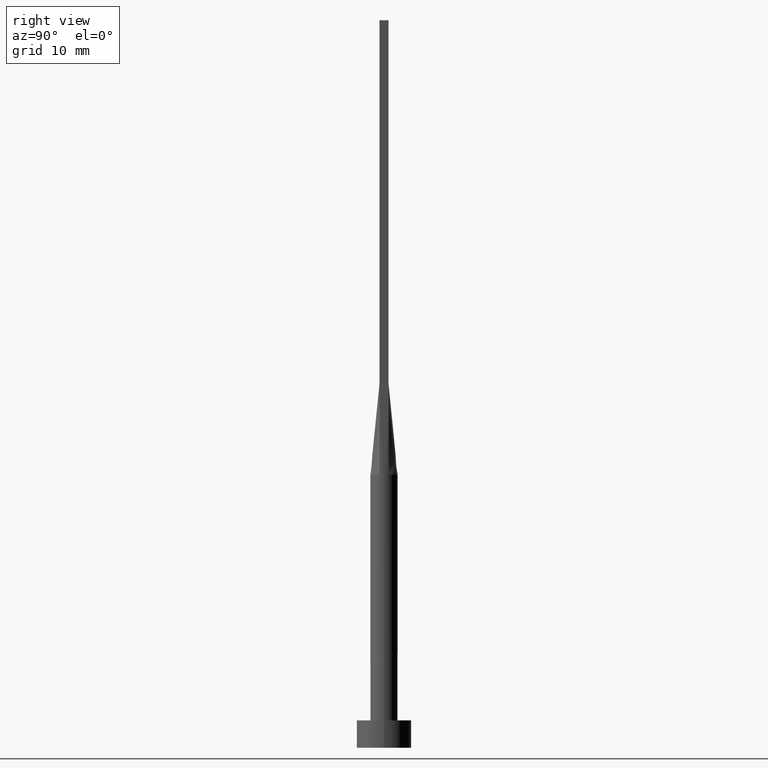
[diagram: clean part render]
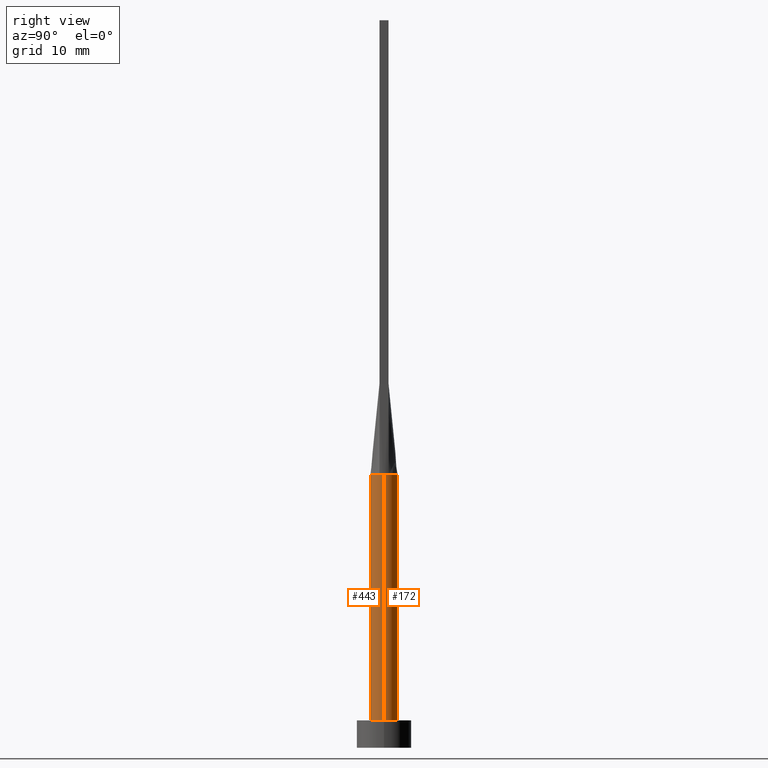
[diagram: same view with one multi-face feature highlighted, each face labeled with its STEP entity id]
A machine part, right view. The highlighted faces form ONE feature: a constant-radius fillet chain: 2 tangent blend faces with common blend radius 1.5 mm. The faces share edges in the B-rep.
Their STEP definitions:
[1] entity #443 (Cylinder):
#5 = EDGE_CURVE ( 'NONE', #149, #128, #182, .T. ) ;
#7 = DIRECTION ( 'NONE',  ( 1.000000000000000000, 0.000000000000000000, 0.000000000000000000 ) ) ;
#11 = AXIS2_PLACEMENT_3D ( 'NONE', #327, #374, #507 ) ;
#14 = EDGE_CURVE ( 'NONE', #143, #565, #286, .T. ) ;
#16 = AXIS2_PLACEMENT_3D ( 'NONE', #95, #451, #551 ) ;
#47 = DIRECTION ( 'NONE',  ( 0.000000000000000000, 0.000000000000000000, 1.000000000000000000 ) ) ;
#69 = CARTESIAN_POINT ( 'NONE',  ( 1.500000000000000222, 1.836970198721030181E-16, 3.000000000000000000 ) ) ;
#82 = EDGE_LOOP ( 'NONE', ( #506, #125, #531, #196, #490, #463 ) ) ;
#95 = CARTESIAN_POINT ( 'NONE',  ( 0.000000000000000000, 0.000000000000000000, 30.00000000000000000 ) ) ;
#100 = AXIS2_PLACEMENT_3D ( 'NONE', #495, #267, #270 ) ;
#125 = ORIENTED_EDGE ( 'NONE', *, *, #480, .F. ) ;
#128 = VERTEX_POINT ( 'NONE', #201 ) ;
#139 = EDGE_CURVE ( 'NONE', #554, #395, #430, .T. ) ;
#143 = VERTEX_POINT ( 'NONE', #564 ) ;
#149 = VERTEX_POINT ( 'NONE', #560 ) ;
#153 = CARTESIAN_POINT ( 'NONE',  ( 1.500000000000000222, 1.836970198721030181E-16, 30.00000000000000000 ) ) ;
#155 = VECTOR ( 'NONE', #388, 1000.000000000000000 ) ;
#182 = LINE ( 'NONE', #239, #523 ) ;
#183 = CARTESIAN_POINT ( 'NONE',  ( 0.000000000000000000, 0.000000000000000000, 30.00000000000000000 ) ) ;
#196 = ORIENTED_EDGE ( 'NONE', *, *, #453, .F. ) ;
#201 = CARTESIAN_POINT ( 'NONE',  ( -1.500000000000000222, 0.000000000000000000, 3.000000000000000000 ) ) ;
#225 = AXIS2_PLACEMENT_3D ( 'NONE', #183, #47, #7 ) ;
#233 = CYLINDRICAL_SURFACE ( 'NONE', #16, 1.500000000000000222 ) ;
#239 = CARTESIAN_POINT ( 'NONE',  ( -1.500000000000000222, 0.000000000000000000, 30.00000000000000000 ) ) ;
#267 = DIRECTION ( 'NONE',  ( 0.000000000000000000, 0.000000000000000000, 1.000000000000000000 ) ) ;
#268 = CIRCLE ( 'NONE', #225, 1.500000000000000222 ) ;
#269 = DIRECTION ( 'NONE',  ( 0.000000000000000000, 0.000000000000000000, 1.000000000000000000 ) ) ;
#270 = DIRECTION ( 'NONE',  ( 1.000000000000000000, 0.000000000000000000, 0.000000000000000000 ) ) ;
#271 = FACE_OUTER_BOUND ( 'NONE', #82, .T. ) ;
#279 = CIRCLE ( 'NONE', #100, 1.500000000000000222 ) ;
#284 = CIRCLE ( 'NONE', #478, 1.500000000000000222 ) ;
#286 = CIRCLE ( 'NONE', #11, 1.500000000000000222 ) ;
#317 = EDGE_CURVE ( 'NONE', #128, #395, #279, .T. ) ;
#327 = CARTESIAN_POINT ( 'NONE',  ( 0.000000000000000000, 0.000000000000000000, 30.00000000000000000 ) ) ;
#331 = CARTESIAN_POINT ( 'NONE',  ( 0.000000000000000000, 0.000000000000000000, 30.00000000000000000 ) ) ;
#374 = DIRECTION ( 'NONE',  ( 0.000000000000000000, 0.000000000000000000, 1.000000000000000000 ) ) ;
#378 = DIRECTION ( 'NONE',  ( -0.000000000000000000, -0.000000000000000000, -1.000000000000000000 ) ) ;
#388 = DIRECTION ( 'NONE',  ( -0.000000000000000000, -0.000000000000000000, -1.000000000000000000 ) ) ;
#393 = CARTESIAN_POINT ( 'NONE',  ( 1.412648369950143756, -0.5045174509283282260, 30.00000000000000000 ) ) ;
#395 = VERTEX_POINT ( 'NONE', #69 ) ;
#407 = CARTESIAN_POINT ( 'NONE',  ( 1.500000000000000000, 1.053334699963867185E-17, 30.00000000000000000 ) ) ;
#430 = LINE ( 'NONE', #153, #155 ) ;
#443 = ADVANCED_FACE ( 'NONE', ( #271 ), #233, .T. ) ;
#451 = DIRECTION ( 'NONE',  ( -0.000000000000000000, -0.000000000000000000, -1.000000000000000000 ) ) ;
#453 = EDGE_CURVE ( 'NONE', #149, #143, #268, .T. ) ;
#462 = DIRECTION ( 'NONE',  ( 1.000000000000000000, 2.664535259100375697E-15, 0.000000000000000000 ) ) ;
#463 = ORIENTED_EDGE ( 'NONE', *, *, #317, .T. ) ;
#478 = AXIS2_PLACEMENT_3D ( 'NONE', #331, #269, #462 ) ;
#480 = EDGE_CURVE ( 'NONE', #565, #554, #284, .T. ) ;
#490 = ORIENTED_EDGE ( 'NONE', *, *, #5, .T. ) ;
#495 = CARTESIAN_POINT ( 'NONE',  ( 0.000000000000000000, 0.000000000000000000, 3.000000000000000000 ) ) ;
#506 = ORIENTED_EDGE ( 'NONE', *, *, #139, .F. ) ;
#507 = DIRECTION ( 'NONE',  ( 1.000000000000000000, 0.000000000000000000, 0.000000000000000000 ) ) ;
#523 = VECTOR ( 'NONE', #378, 1000.000000000000000 ) ;
#531 = ORIENTED_EDGE ( 'NONE', *, *, #14, .F. ) ;
#551 = DIRECTION ( 'NONE',  ( -1.000000000000000000, 0.000000000000000000, 0.000000000000000000 ) ) ;
#554 = VERTEX_POINT ( 'NONE', #407 ) ;
#560 = CARTESIAN_POINT ( 'NONE',  ( -1.500000000000000000, -6.850053904551815961E-17, 30.00000000000000000 ) ) ;
#564 = CARTESIAN_POINT ( 'NONE',  ( -1.412629890847167724, -0.5045107419440655327, 30.00000000000000000 ) ) ;
#565 = VERTEX_POINT ( 'NONE', #393 ) ;
[2] entity #172 (Cylinder):
#5 = EDGE_CURVE ( 'NONE', #149, #128, #182, .T. ) ;
#6 = CARTESIAN_POINT ( 'NONE',  ( -1.161819288130433891, 0.9587178835757675932, 30.00000000000000711 ) ) ;
#21 = DIRECTION ( 'NONE',  ( 0.000000000000000000, 0.000000000000000000, 1.000000000000000000 ) ) ;
#25 = DIRECTION ( 'NONE',  ( -1.000000000000000000, 0.000000000000000000, 0.000000000000000000 ) ) ;
#31 = EDGE_LOOP ( 'NONE', ( #419, #212, #534, #170, #292, #359 ) ) ;
#51 = CARTESIAN_POINT ( 'NONE',  ( -1.373020107211261331, 0.6153643240040217455, 30.00000000000000355 ) ) ;
#61 = CARTESIAN_POINT ( 'NONE',  ( 1.161819288130433891, 0.9587178835757675932, 30.00000000000000355 ) ) ;
#64 = CYLINDRICAL_SURFACE ( 'NONE', #211, 1.500000000000000222 ) ;
#66 = EDGE_CURVE ( 'NONE', #486, #107, #326, .T. ) ;
#68 = DIRECTION ( 'NONE',  ( -0.000000000000000000, -0.000000000000000000, -1.000000000000000000 ) ) ;
#69 = CARTESIAN_POINT ( 'NONE',  ( 1.500000000000000222, 1.836970198721030181E-16, 3.000000000000000000 ) ) ;
#78 = AXIS2_PLACEMENT_3D ( 'NONE', #474, #21, #470 ) ;
#96 = AXIS2_PLACEMENT_3D ( 'NONE', #282, #413, #99 ) ;
#99 = DIRECTION ( 'NONE',  ( 1.000000000000000000, 0.000000000000000000, 0.000000000000000000 ) ) ;
#103 = CARTESIAN_POINT ( 'NONE',  ( -0.1761797990592590402, 1.499999999999999778, 30.00000000000000000 ) ) ;
#105 = EDGE_CURVE ( 'NONE', #395, #128, #199, .T. ) ;
#107 = VERTEX_POINT ( 'NONE', #472 ) ;
#109 = CARTESIAN_POINT ( 'NONE',  ( -0.6732153042498576490, 1.351288176626052495, 30.00000000000000355 ) ) ;
#128 = VERTEX_POINT ( 'NONE', #201 ) ;
#139 = EDGE_CURVE ( 'NONE', #554, #395, #430, .T. ) ;
#145 = EDGE_CURVE ( 'NONE', #554, #486, #449, .T. ) ;
#149 = VERTEX_POINT ( 'NONE', #560 ) ;
#153 = CARTESIAN_POINT ( 'NONE',  ( 1.500000000000000222, 1.836970198721030181E-16, 30.00000000000000000 ) ) ;
#155 = VECTOR ( 'NONE', #388, 1000.000000000000000 ) ;
#159 = FACE_OUTER_BOUND ( 'NONE', #31, .T. ) ;
#170 = ORIENTED_EDGE ( 'NONE', *, *, #5, .F. ) ;
#172 = ADVANCED_FACE ( 'NONE', ( #159 ), #64, .T. ) ;
#182 = LINE ( 'NONE', #239, #523 ) ;
#194 = CARTESIAN_POINT ( 'NONE',  ( -1.412646936588081381, 0.5045169241220069933, 30.00000000000000000 ) ) ;
#199 = CIRCLE ( 'NONE', #96, 1.500000000000000222 ) ;
#201 = CARTESIAN_POINT ( 'NONE',  ( -1.500000000000000222, 0.000000000000000000, 3.000000000000000000 ) ) ;
#211 = AXIS2_PLACEMENT_3D ( 'NONE', #517, #68, #25 ) ;
#212 = ORIENTED_EDGE ( 'NONE', *, *, #139, .T. ) ;
#236 = CARTESIAN_POINT ( 'NONE',  ( 1.316960349798174557, 0.7311494208568982689, 30.00000000000001421 ) ) ;
#239 = CARTESIAN_POINT ( 'NONE',  ( -1.500000000000000222, 0.000000000000000000, 30.00000000000000000 ) ) ;
#241 = CARTESIAN_POINT ( 'NONE',  ( 0.3520402531411749303, 1.468082505288407447, 30.00000000000001066 ) ) ;
#273 = CARTESIAN_POINT ( 'NONE',  ( 1.412628473635865189, 0.5045102250504699404, 30.00000000000000000 ) ) ;
#280 = CARTESIAN_POINT ( 'NONE',  ( 0.6732153042498577600, 1.351288176626052717, 30.00000000000000711 ) ) ;
#282 = CARTESIAN_POINT ( 'NONE',  ( 0.000000000000000000, 0.000000000000000000, 3.000000000000000000 ) ) ;
#285 = CARTESIAN_POINT ( 'NONE',  ( 1.062433464748102407, 1.070418989248103525, 30.00000000000000355 ) ) ;
#289 = CARTESIAN_POINT ( 'NONE',  ( -1.316960349798174557, 0.7311494208568980468, 30.00000000000000355 ) ) ;
#292 = ORIENTED_EDGE ( 'NONE', *, *, #454, .F. ) ;
#302 = CIRCLE ( 'NONE', #513, 1.500000000000000222 ) ;
#322 = DIRECTION ( 'NONE',  ( 0.000000000000000000, 0.000000000000000000, 1.000000000000000000 ) ) ;
#326 = B_SPLINE_CURVE_WITH_KNOTS ( 'NONE', 3,
 ( #273, #330, #236, #61, #285, #511, #280, #241, #380, #103, #372, #109, #417, #457, #6, #289, #51, #194 ),
 .UNSPECIFIED., .F., .F.,
 ( 4, 2, 2, 2, 2, 2, 2, 2, 4 ),
 ( 0.000000000000000000, 0.1250000000000000000, 0.2500000000000000000, 0.3750000000000000000, 0.5000000000000000000, 0.6250000000000000000, 0.7500000000000000000, 0.8750000000000000000, 1.000000000000000000 ),
 .UNSPECIFIED. ) ;
#330 = CARTESIAN_POINT ( 'NONE',  ( 1.373020107211261109, 0.6153643240040217455, 29.99999999999999645 ) ) ;
#359 = ORIENTED_EDGE ( 'NONE', *, *, #66, .F. ) ;
#368 = CARTESIAN_POINT ( 'NONE',  ( 0.000000000000000000, 0.000000000000000000, 30.00000000000000000 ) ) ;
#372 = CARTESIAN_POINT ( 'NONE',  ( -0.3520402531411749858, 1.468082505288407891, 30.00000000000000355 ) ) ;
#378 = DIRECTION ( 'NONE',  ( -0.000000000000000000, -0.000000000000000000, -1.000000000000000000 ) ) ;
#380 = CARTESIAN_POINT ( 'NONE',  ( 0.1761797990592590679, 1.500000000000000222, 30.00000000000000000 ) ) ;
#388 = DIRECTION ( 'NONE',  ( -0.000000000000000000, -0.000000000000000000, -1.000000000000000000 ) ) ;
#395 = VERTEX_POINT ( 'NONE', #69 ) ;
#407 = CARTESIAN_POINT ( 'NONE',  ( 1.500000000000000000, 1.053334699963867185E-17, 30.00000000000000000 ) ) ;
#413 = DIRECTION ( 'NONE',  ( 0.000000000000000000, 0.000000000000000000, 1.000000000000000000 ) ) ;
#417 = CARTESIAN_POINT ( 'NONE',  ( -0.8182264876570950474, 1.266912425724810554, 30.00000000000000000 ) ) ;
#419 = ORIENTED_EDGE ( 'NONE', *, *, #145, .F. ) ;
#430 = LINE ( 'NONE', #153, #155 ) ;
#449 = CIRCLE ( 'NONE', #78, 1.500000000000000222 ) ;
#454 = EDGE_CURVE ( 'NONE', #107, #149, #302, .T. ) ;
#457 = CARTESIAN_POINT ( 'NONE',  ( -1.062433464748102407, 1.070418989248103525, 30.00000000000001066 ) ) ;
#470 = DIRECTION ( 'NONE',  ( 1.000000000000000000, 0.000000000000000000, 0.000000000000000000 ) ) ;
#472 = CARTESIAN_POINT ( 'NONE',  ( -1.412646936588081381, 0.5045169241220069933, 30.00000000000000000 ) ) ;
#474 = CARTESIAN_POINT ( 'NONE',  ( 0.000000000000000000, 0.000000000000000000, 30.00000000000000000 ) ) ;
#486 = VERTEX_POINT ( 'NONE', #544 ) ;
#511 = CARTESIAN_POINT ( 'NONE',  ( 0.8182264876570948253, 1.266912425724810110, 29.99999999999999645 ) ) ;
#513 = AXIS2_PLACEMENT_3D ( 'NONE', #368, #322, #581 ) ;
#517 = CARTESIAN_POINT ( 'NONE',  ( 0.000000000000000000, 0.000000000000000000, 30.00000000000000000 ) ) ;
#523 = VECTOR ( 'NONE', #378, 1000.000000000000000 ) ;
#534 = ORIENTED_EDGE ( 'NONE', *, *, #105, .T. ) ;
#544 = CARTESIAN_POINT ( 'NONE',  ( 1.412628473635865189, 0.5045102250504699404, 30.00000000000000000 ) ) ;
#554 = VERTEX_POINT ( 'NONE', #407 ) ;
#560 = CARTESIAN_POINT ( 'NONE',  ( -1.500000000000000000, -6.850053904551815961E-17, 30.00000000000000000 ) ) ;
#581 = DIRECTION ( 'NONE',  ( 1.000000000000000000, 0.000000000000000000, 0.000000000000000000 ) ) ;